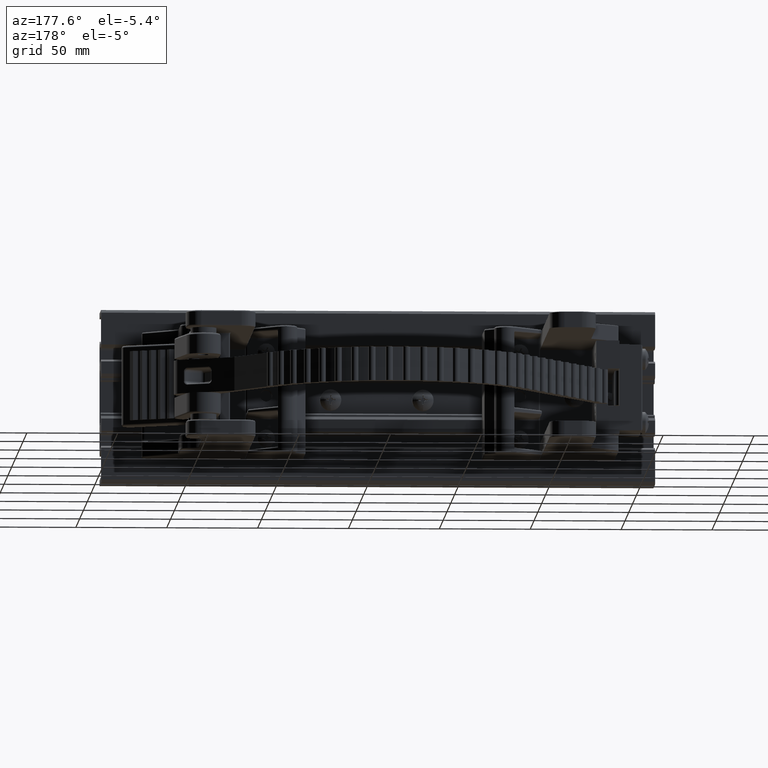
[diagram: clean part render]
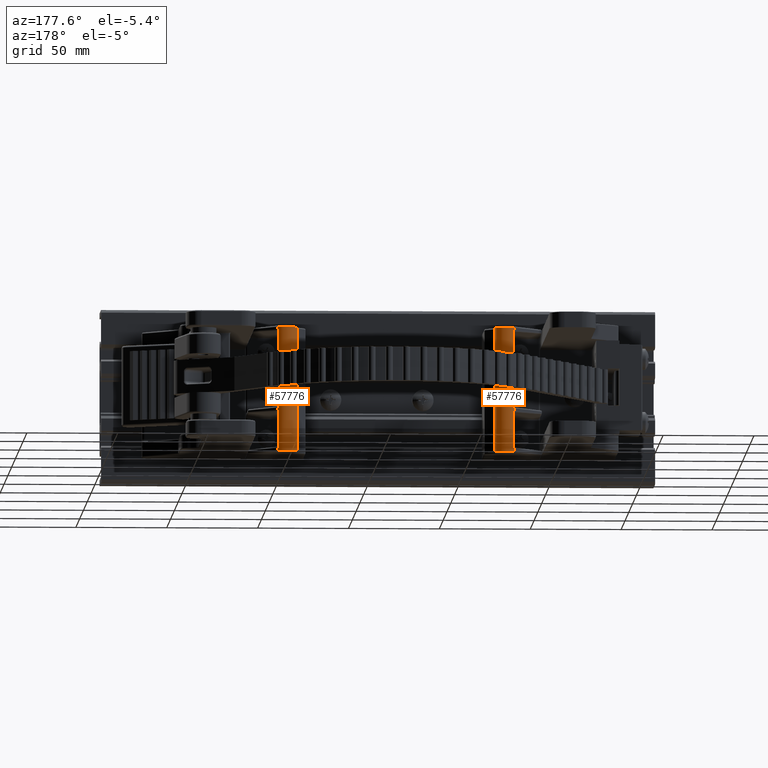
[diagram: same view with one multi-face feature highlighted, each face labeled with its STEP entity id]
A machine part, auxiliary view. The highlighted faces form ONE feature: a constant-radius fillet chain: 2 tangent blend faces with common blend radius 6.35 mm. The faces share edges in the B-rep.
Their STEP definitions:
[1] entity #57776 (Cylinder):
#9 = CARTESIAN_POINT ( 'NONE',  ( -0.6354604721004802900, 1.884875156828551300, -1.281781544797884000 ) ) ;
#40 = CARTESIAN_POINT ( 'NONE',  ( -0.6323165494894764600, 1.882025532608830700, -0.4641092069333788200 ) ) ;
#41 = CARTESIAN_POINT ( 'NONE',  ( -0.6351260480246021500, 1.884577168093879200, -1.282697241157105800 ) ) ;
#42 = CARTESIAN_POINT ( 'NONE',  ( -0.6347380017914061600, 1.884230265785832500, -1.283578500002208400 ) ) ;
#43 = CARTESIAN_POINT ( 'NONE',  ( -0.6336731929469995300, 1.883268507821020700, -1.285009409159271600 ) ) ;
#44 = CARTESIAN_POINT ( 'NONE',  ( -0.6330224722823582000, 1.882676372268308000, -1.285541204488436700 ) ) ;
#45 = CARTESIAN_POINT ( 'NONE',  ( -0.6323165494899665200, 1.882025532609283400, -1.285890793066377900 ) ) ;
#48 = CARTESIAN_POINT ( 'NONE',  ( -0.6250000000000000000, 1.875000000000000000, 1.375000000000000000 ) ) ;
#49 = DIRECTION ( 'NONE',  ( 0.0000000000000000000, 0.0000000000000000000, -1.000000000000000000 ) ) ;
#50 = CARTESIAN_POINT ( 'NONE',  ( -0.6354604721004802900, 1.884875156828551300, 1.375000000000000000 ) ) ;
#51 = DIRECTION ( 'NONE',  ( 0.0000000000000000000, 0.0000000000000000000, -1.000000000000000000 ) ) ;
#52 = CARTESIAN_POINT ( 'NONE',  ( -0.6323165494899665200, 1.882025532609283400, -1.285890793066377900 ) ) ;
#53 = CARTESIAN_POINT ( 'NONE',  ( -0.6330221335479066000, 1.882676059965233900, -0.4644586277631363400 ) ) ;
#54 = CARTESIAN_POINT ( 'NONE',  ( -0.6336742537434318900, 1.883269467232435000, -0.4649919156816039200 ) ) ;
#55 = CARTESIAN_POINT ( 'NONE',  ( -0.6347374321914602800, 1.884229750032991200, -0.4664208352776671500 ) ) ;
#56 = CARTESIAN_POINT ( 'NONE',  ( -0.6351300146487772700, 1.884580702556271500, -0.4673136199727308500 ) ) ;
#57 = CARTESIAN_POINT ( 'NONE',  ( -0.6354604721004802900, 1.884875156828551300, -0.4682184552020795500 ) ) ;
#58 = CARTESIAN_POINT ( 'NONE',  ( -0.6250000000000000000, 1.875000000000000000, -1.341045297141204800 ) ) ;
#61 = CARTESIAN_POINT ( 'NONE',  ( -0.6299741717799977000, 1.879865930558817200, -1.287050790310103200 ) ) ;
#62 = CARTESIAN_POINT ( 'NONE',  ( -0.6276739998562564900, 1.877662403364019200, -1.288215828016792800 ) ) ;
#63 = CARTESIAN_POINT ( 'NONE',  ( -0.6254171786128879300, 1.875416196420472500, -1.289380954705281500 ) ) ;
#64 = CARTESIAN_POINT ( 'NONE',  ( -0.6252779554772053300, 1.875277628080161300, -1.289452831284569900 ) ) ;
#65 = CARTESIAN_POINT ( 'NONE',  ( -0.6251388959239674300, 1.875138895923967700, -1.289524709276873300 ) ) ;
#66 = CARTESIAN_POINT ( 'NONE',  ( -0.6250000000000000000, 1.875000000000000000, -1.289596586628706700 ) ) ;
#73 = CARTESIAN_POINT ( 'NONE',  ( -0.8017766952966418600, 1.948223304703362400, -1.343745239748628000 ) ) ;
#74 = CARTESIAN_POINT ( 'NONE',  ( -0.6725106994472820300, 1.922510699447274700, -1.341770936691886900 ) ) ;
#75 = CARTESIAN_POINT ( 'NONE',  ( -0.7345864197804686800, 1.948223304703360400, -1.342719030454658300 ) ) ;
#76 = CARTESIAN_POINT ( 'NONE',  ( -0.8017766952966418600, 1.948223304703362400, -1.343745239748628000 ) ) ;
#84 = CARTESIAN_POINT ( 'NONE',  ( -0.9482233047033680200, 1.948223304703360400, -1.341508534057380200 ) ) ;
#85 = CARTESIAN_POINT ( 'NONE',  ( -1.051776695296641900, 1.844669914110086400, -1.339926944295580100 ) ) ;
#86 = CARTESIAN_POINT ( 'NONE',  ( -1.051776695296641900, 1.698223304703360400, -1.339926944295580100 ) ) ;
#2480 =( BOUNDED_CURVE ( )  B_SPLINE_CURVE ( 3, ( #58, #74, #75, #76 ),
 .UNSPECIFIED., .F., .T. ) 
 B_SPLINE_CURVE_WITH_KNOTS ( ( 4, 4 ),
 ( 3.926990816987235600, 4.712388980384689700 ),
 .UNSPECIFIED. ) 
 CURVE ( )  GEOMETRIC_REPRESENTATION_ITEM ( )  RATIONAL_B_SPLINE_CURVE ( ( 1.000000000000000000, 0.9492530216741903400, 0.9492530216741903400, 1.000000000000000000 ) ) 
 REPRESENTATION_ITEM ( '' )  );
#2482 =( BOUNDED_CURVE ( )  B_SPLINE_CURVE ( 3, ( #73, #84, #85, #86 ),
 .UNSPECIFIED., .F., .T. ) 
 B_SPLINE_CURVE_WITH_KNOTS ( ( 4, 4 ),
 ( 1.570796326794896600, 3.141592653589793100 ),
 .UNSPECIFIED. ) 
 CURVE ( )  GEOMETRIC_REPRESENTATION_ITEM ( )  RATIONAL_B_SPLINE_CURVE ( ( 1.000000000000000000, 0.8047378541243649400, 0.8047378541243649400, 1.000000000000000000 ) ) 
 REPRESENTATION_ITEM ( '' )  );
#2556 =( BOUNDED_CURVE ( )  B_SPLINE_CURVE ( 3, ( #4052, #4061, #4062, #4063 ),
 .UNSPECIFIED., .F., .T. ) 
 B_SPLINE_CURVE_WITH_KNOTS ( ( 4, 4 ),
 ( 0.0000000000000000000, 1.570796326794896600 ),
 .UNSPECIFIED. ) 
 CURVE ( )  GEOMETRIC_REPRESENTATION_ITEM ( )  RATIONAL_B_SPLINE_CURVE ( ( 1.000000000000000000, 0.8047378541243649400, 0.8047378541243649400, 1.000000000000000000 ) ) 
 REPRESENTATION_ITEM ( '' )  );
#4052 = CARTESIAN_POINT ( 'NONE',  ( -1.051776695296641900, 1.698223304703360400, 1.339926944295580300 ) ) ;
#4061 = CARTESIAN_POINT ( 'NONE',  ( -1.051776695296641900, 1.844669914110086400, 1.339926944295580100 ) ) ;
#4062 = CARTESIAN_POINT ( 'NONE',  ( -0.9482233047033680200, 1.948223304703360400, 1.341508534057380200 ) ) ;
#4063 = CARTESIAN_POINT ( 'NONE',  ( -0.8017766952966418600, 1.948223304703362400, 1.343745239748628000 ) ) ;
#9395 = VERTEX_POINT ( 'NONE', #43007 ) ;
#9396 = VERTEX_POINT ( 'NONE', #43022 ) ;
#9408 = VERTEX_POINT ( 'NONE', #43030 ) ;
#9420 = VERTEX_POINT ( 'NONE', #43045 ) ;
#9430 = VERTEX_POINT ( 'NONE', #43055 ) ;
#9444 = VERTEX_POINT ( 'NONE', #43067 ) ;
#9469 = VERTEX_POINT ( 'NONE', #43089 ) ;
#9482 = VERTEX_POINT ( 'NONE', #43100 ) ;
#9484 = VERTEX_POINT ( 'NONE', #43102 ) ;
#9485 = VERTEX_POINT ( 'NONE', #43104 ) ;
#9497 = VERTEX_POINT ( 'NONE', #43114 ) ;
#9504 = VERTEX_POINT ( 'NONE', #43119 ) ;
#9507 = VERTEX_POINT ( 'NONE', #43123 ) ;
#9551 = VERTEX_POINT ( 'NONE', #43165 ) ;
#9647 = VERTEX_POINT ( 'NONE', #43257 ) ;
#9651 = VERTEX_POINT ( 'NONE', #43262 ) ;
#9715 = VERTEX_POINT ( 'NONE', #43322 ) ;
#9730 = VERTEX_POINT ( 'NONE', #43337 ) ;
#9732 = VERTEX_POINT ( 'NONE', #43339 ) ;
#9738 = VERTEX_POINT ( 'NONE', #43344 ) ;
#9767 = VERTEX_POINT ( 'NONE', #43372 ) ;
#9952 = VERTEX_POINT ( 'NONE', #43544 ) ;
#10027 = VERTEX_POINT ( 'NONE', #43632 ) ;
#10029 = VERTEX_POINT ( 'NONE', #43633 ) ;
#10129 =( BOUNDED_CURVE ( )  B_SPLINE_CURVE ( 3, ( #47825, #47844, #47846, #47848 ),
 .UNSPECIFIED., .F., .T. ) 
 B_SPLINE_CURVE_WITH_KNOTS ( ( 4, 4 ),
 ( 4.712388980384689700, 5.497787143782143300 ),
 .UNSPECIFIED. ) 
 CURVE ( )  GEOMETRIC_REPRESENTATION_ITEM ( )  RATIONAL_B_SPLINE_CURVE ( ( 1.000000000000000000, 0.9492530216741903400, 0.9492530216741903400, 1.000000000000000000 ) ) 
 REPRESENTATION_ITEM ( '' )  );
#12663 = EDGE_LOOP ( 'NONE', ( #73429, #73430, #73431, #73432, #73433, #73434, #73435, #73436, #73437, #73438, #73439, #73442, #73443, #73444, #73445, #73446, #73453, #73448, #73449, #73450, #73451, #73452, #73462, #73461 ) ) ;
#15870 = B_SPLINE_CURVE_WITH_KNOTS ( 'NONE', 3,
 ( #9, #41, #42, #43, #44, #45 ),
 .UNSPECIFIED., .F., .F.,
 ( 4, 2, 4 ),
 ( -7.375673841362419800E-006, 7.030111857142956100E-005, 0.0001479779109842215300 ),
 .UNSPECIFIED. ) ;
#15872 = B_SPLINE_CURVE_WITH_KNOTS ( 'NONE', 3,
 ( #40, #53, #54, #55, #56, #57 ),
 .UNSPECIFIED., .F., .F.,
 ( 4, 2, 4 ),
 ( 8.498374721940738900E-018, 7.675546328529542800E-005, 0.0001535109265705823700 ),
 .UNSPECIFIED. ) ;
#15875 = B_SPLINE_CURVE_WITH_KNOTS ( 'NONE', 3,
 ( #52, #61, #62, #63, #64, #65, #66 ),
 .UNSPECIFIED., .F., .F.,
 ( 4, 3, 4 ),
 ( 0.0001146475992146287600, 0.0003730035169660013700, 0.0003889419832045119600 ),
 .UNSPECIFIED. ) ;
#16319 = EDGE_CURVE ( 'NONE', #9647, #9952, #32488, .T. ) ;
#16338 = EDGE_CURVE ( 'NONE', #9651, #9444, #32565, .T. ) ;
#16339 = EDGE_CURVE ( 'NONE', #9507, #9504, #53789, .T. ) ;
#16340 = EDGE_CURVE ( 'NONE', #9504, #9651, #53845, .T. ) ;
#16341 = EDGE_CURVE ( 'NONE', #9420, #9715, #53512, .T. ) ;
#16342 = EDGE_CURVE ( 'NONE', #9395, #9482, #32550, .T. ) ;
#16343 = EDGE_CURVE ( 'NONE', #9482, #9730, #53766, .T. ) ;
#16344 = EDGE_CURVE ( 'NONE', #9484, #9485, #53850, .T. ) ;
#16345 = EDGE_CURVE ( 'NONE', #10029, #9395, #53564, .T. ) ;
#16346 = EDGE_CURVE ( 'NONE', #9730, #9738, #53627, .T. ) ;
#16347 = EDGE_CURVE ( 'NONE', #9444, #10029, #53595, .T. ) ;
#16348 = EDGE_CURVE ( 'NONE', #9738, #9484, #32572, .T. ) ;
#16349 = EDGE_CURVE ( 'NONE', #9767, #9497, #10129, .T. ) ;
#16350 = EDGE_CURVE ( 'NONE', #9497, #9420, #32558, .T. ) ;
#16351 = EDGE_CURVE ( 'NONE', #9715, #9732, #53764, .T. ) ;
#16352 = EDGE_CURVE ( 'NONE', #9732, #9507, #32579, .T. ) ;
#31198 = EDGE_CURVE ( 'NONE', #9551, #9408, #15870, .T. ) ;
#31200 = EDGE_CURVE ( 'NONE', #9396, #10027, #76554, .T. ) ;
#31201 = EDGE_CURVE ( 'NONE', #9469, #9551, #76556, .T. ) ;
#31202 = EDGE_CURVE ( 'NONE', #9485, #9469, #15872, .T. ) ;
#31204 = EDGE_CURVE ( 'NONE', #9408, #9396, #15875, .T. ) ;
#31208 = EDGE_CURVE ( 'NONE', #10027, #9430, #2480, .T. ) ;
#31212 = EDGE_CURVE ( 'NONE', #9430, #9952, #2482, .T. ) ;
#32488 = LINE ( 'NONE', #43706, #32497 ) ;
#32497 = VECTOR ( 'NONE', #43712, 39.37007874015748100 ) ;
#32550 = LINE ( 'NONE', #47769, #32560 ) ;
#32558 = LINE ( 'NONE', #47852, #32581 ) ;
#32560 = VECTOR ( 'NONE', #47771, 39.37007874015748100 ) ;
#32565 = LINE ( 'NONE', #43845, #32567 ) ;
#32567 = VECTOR ( 'NONE', #43848, 39.37007874015748100 ) ;
#32569 = VECTOR ( 'NONE', #47872, 39.37007874015748100 ) ;
#32572 = LINE ( 'NONE', #47838, #32575 ) ;
#32575 = VECTOR ( 'NONE', #47839, 39.37007874015748100 ) ;
#32579 = LINE ( 'NONE', #47870, #32569 ) ;
#32581 = VECTOR ( 'NONE', #47854, 39.37007874015748100 ) ;
#40580 = EDGE_CURVE ( 'NONE', #9647, #9767, #2556, .T. ) ;
#43007 = CARTESIAN_POINT ( 'NONE',  ( -0.6354604721004802900, 1.884875156828551300, 0.4067815447979205600 ) ) ;
#43022 = CARTESIAN_POINT ( 'NONE',  ( -0.6250000000000000000, 1.875000000000000000, -1.289596586628706700 ) ) ;
#43030 = CARTESIAN_POINT ( 'NONE',  ( -0.6323165494899665200, 1.882025532609283400, -1.285890793066377900 ) ) ;
#43045 = CARTESIAN_POINT ( 'NONE',  ( -0.6250000000000000000, 1.875000000000000000, 1.289596586628706700 ) ) ;
#43055 = CARTESIAN_POINT ( 'NONE',  ( -0.8017766952966418600, 1.948223304703362400, -1.343745239748628000 ) ) ;
#43067 = CARTESIAN_POINT ( 'NONE',  ( -0.6250000000000000000, 1.875000000000000000, 0.4145965866287054700 ) ) ;
#43089 = CARTESIAN_POINT ( 'NONE',  ( -0.6354604721004802900, 1.884875156828551300, -0.4682184552020795500 ) ) ;
#43100 = CARTESIAN_POINT ( 'NONE',  ( -0.6354604721004802900, 1.884875156828551300, -0.4067815447978835300 ) ) ;
#43102 = CARTESIAN_POINT ( 'NONE',  ( -0.6250000000000000000, 1.875000000000000000, -0.4604034133712937000 ) ) ;
#43104 = CARTESIAN_POINT ( 'NONE',  ( -0.6323165494894764600, 1.882025532608830700, -0.4641092069333788200 ) ) ;
#43114 = CARTESIAN_POINT ( 'NONE',  ( -0.6250000000000000000, 1.875000000000000000, 1.341045297141204800 ) ) ;
#43119 = CARTESIAN_POINT ( 'NONE',  ( -0.6323165494894804600, 1.882025532608834400, 0.4641092069333803700 ) ) ;
#43123 = CARTESIAN_POINT ( 'NONE',  ( -0.6354604721004802900, 1.884875156828551300, 0.4682184552021165800 ) ) ;
#43165 = CARTESIAN_POINT ( 'NONE',  ( -0.6354604721004802900, 1.884875156828551300, -1.281781544797884000 ) ) ;
#43257 = CARTESIAN_POINT ( 'NONE',  ( -1.051776695296641900, 1.698223304703360400, 1.339926944295580300 ) ) ;
#43262 = CARTESIAN_POINT ( 'NONE',  ( -0.6250000000000000000, 1.875000000000000000, 0.4604034133712937000 ) ) ;
#43322 = CARTESIAN_POINT ( 'NONE',  ( -0.6323165494894764600, 1.882025532608830700, 1.285890793066622100 ) ) ;
#43337 = CARTESIAN_POINT ( 'NONE',  ( -0.6323165494894804600, 1.882025532608834400, -0.4108907930666189100 ) ) ;
#43339 = CARTESIAN_POINT ( 'NONE',  ( -0.6354604721004802900, 1.884875156828551300, 1.281781544797921300 ) ) ;
#43344 = CARTESIAN_POINT ( 'NONE',  ( -0.6250000000000000000, 1.875000000000000000, -0.4145965866287054700 ) ) ;
#43372 = CARTESIAN_POINT ( 'NONE',  ( -0.8017766952966418600, 1.948223304703362400, 1.343745239748628000 ) ) ;
#43544 = CARTESIAN_POINT ( 'NONE',  ( -1.051776695296641900, 1.698223304703360400, -1.339926944295580100 ) ) ;
#43632 = CARTESIAN_POINT ( 'NONE',  ( -0.6250000000000000000, 1.875000000000000000, -1.341045297141204800 ) ) ;
#43633 = CARTESIAN_POINT ( 'NONE',  ( -0.6323165494894764600, 1.882025532608830700, 0.4108907930666204600 ) ) ;
#43706 = CARTESIAN_POINT ( 'NONE',  ( -1.051776695296641900, 1.698223304703360400, 1.375000000000000000 ) ) ;
#43712 = DIRECTION ( 'NONE',  ( 0.0000000000000000000, 0.0000000000000000000, -1.000000000000000000 ) ) ;
#43815 = CARTESIAN_POINT ( 'NONE',  ( -0.6323165494894804600, 1.882025532608834400, 0.4641092069333803700 ) ) ;
#43843 = CARTESIAN_POINT ( 'NONE',  ( -0.6354604721004802900, 1.884875156828551300, 0.4682184552021165800 ) ) ;
#43845 = CARTESIAN_POINT ( 'NONE',  ( -0.6250000000000000000, 1.875000000000000000, 1.375000000000000000 ) ) ;
#43848 = DIRECTION ( 'NONE',  ( 0.0000000000000000000, 0.0000000000000000000, -1.000000000000000000 ) ) ;
#43852 = CARTESIAN_POINT ( 'NONE',  ( -0.6351260480245271000, 1.884577168093811900, 0.4673027588428090300 ) ) ;
#43855 = CARTESIAN_POINT ( 'NONE',  ( -0.6347380017913091300, 1.884230265785745700, 0.4664214999975879200 ) ) ;
#43857 = CARTESIAN_POINT ( 'NONE',  ( -0.6336731929467229700, 1.883268507820769400, 0.4649905908404347600 ) ) ;
#43860 = CARTESIAN_POINT ( 'NONE',  ( -0.6330224722818504900, 1.882676372267779100, 0.4644587955116749000 ) ) ;
#43862 = CARTESIAN_POINT ( 'NONE',  ( -0.6323165494894804600, 1.882025532608834400, 0.4641092069333803700 ) ) ;
#43866 = CARTESIAN_POINT ( 'NONE',  ( -0.6250000000000000000, 1.875000000000000000, 1.289596586628706700 ) ) ;
#43868 = CARTESIAN_POINT ( 'NONE',  ( -0.6299741717796789600, 1.879865930558511900, 0.4629492096897362400 ) ) ;
#43869 = CARTESIAN_POINT ( 'NONE',  ( -0.6276739998561035000, 1.877662403363868900, 0.4617841719831104500 ) ) ;
#43872 = CARTESIAN_POINT ( 'NONE',  ( -0.6254171786128858200, 1.875416196420472500, 0.4606190452947228600 ) ) ;
#43873 = CARTESIAN_POINT ( 'NONE',  ( -0.6252779554772028800, 1.875277628080160900, 0.4605471687154356600 ) ) ;
#43876 = CARTESIAN_POINT ( 'NONE',  ( -0.6251388959239671000, 1.875138895923967000, 0.4604752907231284800 ) ) ;
#43878 = CARTESIAN_POINT ( 'NONE',  ( -0.6250000000000000000, 1.875000000000000000, 0.4604034133712937000 ) ) ;
#43882 = CARTESIAN_POINT ( 'NONE',  ( -0.6354604721004802900, 1.884875156828551300, -0.4067815447978835300 ) ) ;
#43885 = CARTESIAN_POINT ( 'NONE',  ( -0.6251388959239674300, 1.875138895923967700, 1.289524709276873300 ) ) ;
#47760 = CARTESIAN_POINT ( 'NONE',  ( -0.6252779554772053300, 1.875277628080161300, 1.289452831284569900 ) ) ;
#47762 = CARTESIAN_POINT ( 'NONE',  ( -0.6254171786128879300, 1.875416196420472500, 1.289380954705281500 ) ) ;
#47764 = CARTESIAN_POINT ( 'NONE',  ( -0.6276739998560989500, 1.877662403363862500, 1.288215828016874300 ) ) ;
#47765 = CARTESIAN_POINT ( 'NONE',  ( -0.6299741717796763000, 1.879865930558509500, 1.287050790310265500 ) ) ;
#47766 = CARTESIAN_POINT ( 'NONE',  ( -0.6323165494894764600, 1.882025532608830700, 1.285890793066622100 ) ) ;
#47769 = CARTESIAN_POINT ( 'NONE',  ( -0.6354604721004802900, 1.884875156828551300, 1.375000000000000000 ) ) ;
#47771 = DIRECTION ( 'NONE',  ( 0.0000000000000000000, 0.0000000000000000000, -1.000000000000000000 ) ) ;
#47774 = CARTESIAN_POINT ( 'NONE',  ( -0.6250000000000000000, 1.875000000000000000, -0.4604034133712937000 ) ) ;
#47776 = CARTESIAN_POINT ( 'NONE',  ( -0.6351260480245268800, 1.884577168093812400, -0.4076972411571907500 ) ) ;
#47778 = CARTESIAN_POINT ( 'NONE',  ( -0.6347380017913084600, 1.884230265785745300, -0.4085785000024119200 ) ) ;
#47780 = CARTESIAN_POINT ( 'NONE',  ( -0.6336731929467227500, 1.883268507820769400, -0.4100094091595645200 ) ) ;
#47782 = CARTESIAN_POINT ( 'NONE',  ( -0.6330224722818506000, 1.882676372267779100, -0.4105412044883251500 ) ) ;
#47784 = CARTESIAN_POINT ( 'NONE',  ( -0.6323165494894804600, 1.882025532608834400, -0.4108907930666189100 ) ) ;
#47787 = CARTESIAN_POINT ( 'NONE',  ( -0.6323165494894764600, 1.882025532608830700, 0.4108907930666204600 ) ) ;
#47789 = CARTESIAN_POINT ( 'NONE',  ( -0.6251388959239671000, 1.875138895923967000, -0.4604752907231287100 ) ) ;
#47791 = CARTESIAN_POINT ( 'NONE',  ( -0.6252779554772026600, 1.875277628080160900, -0.4605471687154366100 ) ) ;
#47793 = CARTESIAN_POINT ( 'NONE',  ( -0.6254171786128858200, 1.875416196420472500, -0.4606190452947235800 ) ) ;
#47794 = CARTESIAN_POINT ( 'NONE',  ( -0.6276739998561030600, 1.877662403363868700, -0.4617841719831069500 ) ) ;
#47795 = CARTESIAN_POINT ( 'NONE',  ( -0.6299741717796765200, 1.879865930558509500, -0.4629492096897351900 ) ) ;
#47796 = CARTESIAN_POINT ( 'NONE',  ( -0.6323165494894764600, 1.882025532608830700, -0.4641092069333788200 ) ) ;
#47799 = CARTESIAN_POINT ( 'NONE',  ( -0.6323165494894804600, 1.882025532608834400, -0.4108907930666189100 ) ) ;
#47801 = CARTESIAN_POINT ( 'NONE',  ( -0.6330221335479066000, 1.882676059965233900, 0.4105413722368638200 ) ) ;
#47803 = CARTESIAN_POINT ( 'NONE',  ( -0.6336742537434307800, 1.883269467232434800, 0.4100080843183944700 ) ) ;
#47805 = CARTESIAN_POINT ( 'NONE',  ( -0.6347374321914588400, 1.884229750032989600, 0.4085791647223306300 ) ) ;
#47807 = CARTESIAN_POINT ( 'NONE',  ( -0.6351300146487767200, 1.884580702556270200, 0.4076863800272688100 ) ) ;
#47808 = CARTESIAN_POINT ( 'NONE',  ( -0.6354604721004802900, 1.884875156828551300, 0.4067815447979205600 ) ) ;
#47810 = CARTESIAN_POINT ( 'NONE',  ( -0.6250000000000000000, 1.875000000000000000, 0.4145965866287054700 ) ) ;
#47812 = CARTESIAN_POINT ( 'NONE',  ( -0.6299741717796790700, 1.879865930558511900, -0.4120507903102630900 ) ) ;
#47814 = CARTESIAN_POINT ( 'NONE',  ( -0.6276739998561025000, 1.877662403363868200, -0.4132158280168856100 ) ) ;
#47816 = CARTESIAN_POINT ( 'NONE',  ( -0.6254171786128858200, 1.875416196420472500, -0.4143809547052772500 ) ) ;
#47818 = CARTESIAN_POINT ( 'NONE',  ( -0.6252779554772030000, 1.875277628080160900, -0.4144528312845646200 ) ) ;
#47820 = CARTESIAN_POINT ( 'NONE',  ( -0.6251388959239671000, 1.875138895923967000, -0.4145247092768710700 ) ) ;
#47822 = CARTESIAN_POINT ( 'NONE',  ( -0.6250000000000000000, 1.875000000000000000, -0.4145965866287054700 ) ) ;
#47825 = CARTESIAN_POINT ( 'NONE',  ( -0.8017766952966418600, 1.948223304703362400, 1.343745239748628000 ) ) ;
#47827 = CARTESIAN_POINT ( 'NONE',  ( -0.6251388959239671000, 1.875138895923967000, 0.4145247092768708000 ) ) ;
#47829 = CARTESIAN_POINT ( 'NONE',  ( -0.6252779554772028800, 1.875277628080160900, 0.4144528312845636200 ) ) ;
#47831 = CARTESIAN_POINT ( 'NONE',  ( -0.6254171786128858200, 1.875416196420472500, 0.4143809547052764200 ) ) ;
#47833 = CARTESIAN_POINT ( 'NONE',  ( -0.6276739998561020600, 1.877662403363867600, 0.4132158280168892700 ) ) ;
#47835 = CARTESIAN_POINT ( 'NONE',  ( -0.6299741717796763000, 1.879865930558509000, 0.4120507903102644300 ) ) ;
#47837 = CARTESIAN_POINT ( 'NONE',  ( -0.6323165494894764600, 1.882025532608830700, 0.4108907930666204600 ) ) ;
#47838 = CARTESIAN_POINT ( 'NONE',  ( -0.6250000000000000000, 1.875000000000000000, 1.375000000000000000 ) ) ;
#47839 = DIRECTION ( 'NONE',  ( 0.0000000000000000000, 0.0000000000000000000, -1.000000000000000000 ) ) ;
#47842 = CARTESIAN_POINT ( 'NONE',  ( -0.6323165494894764600, 1.882025532608830700, 1.285890793066622100 ) ) ;
#47844 = CARTESIAN_POINT ( 'NONE',  ( -0.7345864197804686800, 1.948223304703360400, 1.342719030454658300 ) ) ;
#47846 = CARTESIAN_POINT ( 'NONE',  ( -0.6725106994472823700, 1.922510699447274900, 1.341770936691886900 ) ) ;
#47848 = CARTESIAN_POINT ( 'NONE',  ( -0.6250000000000000000, 1.875000000000000000, 1.341045297141204800 ) ) ;
#47852 = CARTESIAN_POINT ( 'NONE',  ( -0.6250000000000000000, 1.875000000000000000, 1.375000000000000000 ) ) ;
#47854 = DIRECTION ( 'NONE',  ( 0.0000000000000000000, 0.0000000000000000000, -1.000000000000000000 ) ) ;
#47859 = CARTESIAN_POINT ( 'NONE',  ( -0.6330221335479066000, 1.882676059965233900, 1.285541372236863400 ) ) ;
#47861 = CARTESIAN_POINT ( 'NONE',  ( -0.6336742537434317800, 1.883269467232435500, 1.285008084318396000 ) ) ;
#47863 = CARTESIAN_POINT ( 'NONE',  ( -0.6347374321914601700, 1.884229750032991400, 1.283579164722332500 ) ) ;
#47865 = CARTESIAN_POINT ( 'NONE',  ( -0.6351300146487945900, 1.884580702556287300, 1.282686380027279900 ) ) ;
#47867 = CARTESIAN_POINT ( 'NONE',  ( -0.6354604721004802900, 1.884875156828551300, 1.281781544797921300 ) ) ;
#47870 = CARTESIAN_POINT ( 'NONE',  ( -0.6354604721004802900, 1.884875156828551300, 1.375000000000000000 ) ) ;
#47872 = DIRECTION ( 'NONE',  ( 0.0000000000000000000, 0.0000000000000000000, -1.000000000000000000 ) ) ;
#53512 = B_SPLINE_CURVE_WITH_KNOTS ( 'NONE', 3,
 ( #43866, #43885, #47760, #47762, #47764, #47765, #47766 ),
 .UNSPECIFIED., .F., .F.,
 ( 4, 3, 4 ),
 ( -1.593846623851059700E-005, 0.0000000000000000000, 0.0002583559177333321300 ),
 .UNSPECIFIED. ) ;
#53564 = B_SPLINE_CURVE_WITH_KNOTS ( 'NONE', 3,
 ( #47787, #47801, #47803, #47805, #47807, #47808 ),
 .UNSPECIFIED., .F., .F.,
 ( 4, 2, 4 ),
 ( 1.522213672366955700E-017, 7.675546328530330200E-005, 0.0001535109265705914000 ),
 .UNSPECIFIED. ) ;
#53595 = B_SPLINE_CURVE_WITH_KNOTS ( 'NONE', 3,
 ( #47810, #47827, #47829, #47831, #47833, #47835, #47837 ),
 .UNSPECIFIED., .F., .F.,
 ( 4, 3, 4 ),
 ( -1.593846623850818800E-005, 0.0000000000000000000, 0.0002583559177333255700 ),
 .UNSPECIFIED. ) ;
#53627 = B_SPLINE_CURVE_WITH_KNOTS ( 'NONE', 3,
 ( #47799, #47812, #47814, #47816, #47818, #47820, #47822 ),
 .UNSPECIFIED., .F., .F.,
 ( 4, 3, 4 ),
 ( 0.0001146475992325294300, 0.0003730035169660179100, 0.0003889419832045189600 ),
 .UNSPECIFIED. ) ;
#53764 = B_SPLINE_CURVE_WITH_KNOTS ( 'NONE', 3,
 ( #47842, #47859, #47861, #47863, #47865, #47867 ),
 .UNSPECIFIED., .F., .F.,
 ( 4, 2, 4 ),
 ( 3.469446951953614200E-018, 7.675546328527541100E-005, 0.0001535109265705473500 ),
 .UNSPECIFIED. ) ;
#53766 = B_SPLINE_CURVE_WITH_KNOTS ( 'NONE', 3,
 ( #43882, #47776, #47778, #47780, #47782, #47784 ),
 .UNSPECIFIED., .F., .F.,
 ( 4, 2, 4 ),
 ( -7.375673841303733100E-006, 7.030111858062061400E-005, 0.0001479779110025449800 ),
 .UNSPECIFIED. ) ;
#53789 = B_SPLINE_CURVE_WITH_KNOTS ( 'NONE', 3,
 ( #43843, #43852, #43855, #43857, #43860, #43862 ),
 .UNSPECIFIED., .F., .F.,
 ( 4, 2, 4 ),
 ( -7.375673841305291700E-006, 7.030111858062892100E-005, 0.0001479779110025631400 ),
 .UNSPECIFIED. ) ;
#53845 = B_SPLINE_CURVE_WITH_KNOTS ( 'NONE', 3,
 ( #43815, #43868, #43869, #43872, #43873, #43876, #43878 ),
 .UNSPECIFIED., .F., .F.,
 ( 4, 3, 4 ),
 ( 0.0001146475992325344900, 0.0003730035169660108000, 0.0003889419832045196100 ),
 .UNSPECIFIED. ) ;
#53850 = B_SPLINE_CURVE_WITH_KNOTS ( 'NONE', 3,
 ( #47774, #47789, #47791, #47793, #47794, #47795, #47796 ),
 .UNSPECIFIED., .F., .F.,
 ( 4, 3, 4 ),
 ( -1.593846623851534000E-005, 0.0000000000000000000, 0.0002583559177333282900 ),
 .UNSPECIFIED. ) ;
#57776 = ADVANCED_FACE ( 'NONE', ( #67204 ), #67225, .T. ) ;
#64675 = DIRECTION ( 'NONE',  ( -1.000000000000000000, 0.0000000000000000000, 0.0000000000000000000 ) ) ;
#64679 = CARTESIAN_POINT ( 'NONE',  ( -0.8017766952966418600, 1.698223304703360400, 1.375000000000000000 ) ) ;
#64680 = DIRECTION ( 'NONE',  ( 0.0000000000000000000, 0.0000000000000000000, -1.000000000000000000 ) ) ;
#67204 = FACE_OUTER_BOUND ( 'NONE', #12663, .T. ) ;
#67225 = CYLINDRICAL_SURFACE ( 'NONE', #74166, 0.2499999999999999200 ) ;
#73429 = ORIENTED_EDGE ( 'NONE', *, *, #16319, .F. ) ;
#73430 = ORIENTED_EDGE ( 'NONE', *, *, #40580, .T. ) ;
#73431 = ORIENTED_EDGE ( 'NONE', *, *, #16349, .T. ) ;
#73432 = ORIENTED_EDGE ( 'NONE', *, *, #16350, .T. ) ;
#73433 = ORIENTED_EDGE ( 'NONE', *, *, #16341, .T. ) ;
#73434 = ORIENTED_EDGE ( 'NONE', *, *, #16351, .T. ) ;
#73435 = ORIENTED_EDGE ( 'NONE', *, *, #16352, .T. ) ;
#73436 = ORIENTED_EDGE ( 'NONE', *, *, #16339, .T. ) ;
#73437 = ORIENTED_EDGE ( 'NONE', *, *, #16340, .T. ) ;
#73438 = ORIENTED_EDGE ( 'NONE', *, *, #16338, .T. ) ;
#73439 = ORIENTED_EDGE ( 'NONE', *, *, #16347, .T. ) ;
#73442 = ORIENTED_EDGE ( 'NONE', *, *, #16345, .T. ) ;
#73443 = ORIENTED_EDGE ( 'NONE', *, *, #16342, .T. ) ;
#73444 = ORIENTED_EDGE ( 'NONE', *, *, #16343, .T. ) ;
#73445 = ORIENTED_EDGE ( 'NONE', *, *, #16346, .T. ) ;
#73446 = ORIENTED_EDGE ( 'NONE', *, *, #16348, .T. ) ;
#73448 = ORIENTED_EDGE ( 'NONE', *, *, #31202, .T. ) ;
#73449 = ORIENTED_EDGE ( 'NONE', *, *, #31201, .T. ) ;
#73450 = ORIENTED_EDGE ( 'NONE', *, *, #31198, .T. ) ;
#73451 = ORIENTED_EDGE ( 'NONE', *, *, #31204, .T. ) ;
#73452 = ORIENTED_EDGE ( 'NONE', *, *, #31200, .T. ) ;
#73453 = ORIENTED_EDGE ( 'NONE', *, *, #16344, .T. ) ;
#73461 = ORIENTED_EDGE ( 'NONE', *, *, #31212, .T. ) ;
#73462 = ORIENTED_EDGE ( 'NONE', *, *, #31208, .T. ) ;
#74166 = AXIS2_PLACEMENT_3D ( 'NONE', #64679, #64680, #64675 ) ;
#76554 = LINE ( 'NONE', #48, #76555 ) ;
#76555 = VECTOR ( 'NONE', #49, 39.37007874015748100 ) ;
#76556 = LINE ( 'NONE', #50, #76557 ) ;
#76557 = VECTOR ( 'NONE', #51, 39.37007874015748100 ) ;
[2] entity #57776 (Cylinder):
#9 = CARTESIAN_POINT ( 'NONE',  ( -0.6354604721004802900, 1.884875156828551300, -1.281781544797884000 ) ) ;
#40 = CARTESIAN_POINT ( 'NONE',  ( -0.6323165494894764600, 1.882025532608830700, -0.4641092069333788200 ) ) ;
#41 = CARTESIAN_POINT ( 'NONE',  ( -0.6351260480246021500, 1.884577168093879200, -1.282697241157105800 ) ) ;
#42 = CARTESIAN_POINT ( 'NONE',  ( -0.6347380017914061600, 1.884230265785832500, -1.283578500002208400 ) ) ;
#43 = CARTESIAN_POINT ( 'NONE',  ( -0.6336731929469995300, 1.883268507821020700, -1.285009409159271600 ) ) ;
#44 = CARTESIAN_POINT ( 'NONE',  ( -0.6330224722823582000, 1.882676372268308000, -1.285541204488436700 ) ) ;
#45 = CARTESIAN_POINT ( 'NONE',  ( -0.6323165494899665200, 1.882025532609283400, -1.285890793066377900 ) ) ;
#48 = CARTESIAN_POINT ( 'NONE',  ( -0.6250000000000000000, 1.875000000000000000, 1.375000000000000000 ) ) ;
#49 = DIRECTION ( 'NONE',  ( 0.0000000000000000000, 0.0000000000000000000, -1.000000000000000000 ) ) ;
#50 = CARTESIAN_POINT ( 'NONE',  ( -0.6354604721004802900, 1.884875156828551300, 1.375000000000000000 ) ) ;
#51 = DIRECTION ( 'NONE',  ( 0.0000000000000000000, 0.0000000000000000000, -1.000000000000000000 ) ) ;
#52 = CARTESIAN_POINT ( 'NONE',  ( -0.6323165494899665200, 1.882025532609283400, -1.285890793066377900 ) ) ;
#53 = CARTESIAN_POINT ( 'NONE',  ( -0.6330221335479066000, 1.882676059965233900, -0.4644586277631363400 ) ) ;
#54 = CARTESIAN_POINT ( 'NONE',  ( -0.6336742537434318900, 1.883269467232435000, -0.4649919156816039200 ) ) ;
#55 = CARTESIAN_POINT ( 'NONE',  ( -0.6347374321914602800, 1.884229750032991200, -0.4664208352776671500 ) ) ;
#56 = CARTESIAN_POINT ( 'NONE',  ( -0.6351300146487772700, 1.884580702556271500, -0.4673136199727308500 ) ) ;
#57 = CARTESIAN_POINT ( 'NONE',  ( -0.6354604721004802900, 1.884875156828551300, -0.4682184552020795500 ) ) ;
#58 = CARTESIAN_POINT ( 'NONE',  ( -0.6250000000000000000, 1.875000000000000000, -1.341045297141204800 ) ) ;
#61 = CARTESIAN_POINT ( 'NONE',  ( -0.6299741717799977000, 1.879865930558817200, -1.287050790310103200 ) ) ;
#62 = CARTESIAN_POINT ( 'NONE',  ( -0.6276739998562564900, 1.877662403364019200, -1.288215828016792800 ) ) ;
#63 = CARTESIAN_POINT ( 'NONE',  ( -0.6254171786128879300, 1.875416196420472500, -1.289380954705281500 ) ) ;
#64 = CARTESIAN_POINT ( 'NONE',  ( -0.6252779554772053300, 1.875277628080161300, -1.289452831284569900 ) ) ;
#65 = CARTESIAN_POINT ( 'NONE',  ( -0.6251388959239674300, 1.875138895923967700, -1.289524709276873300 ) ) ;
#66 = CARTESIAN_POINT ( 'NONE',  ( -0.6250000000000000000, 1.875000000000000000, -1.289596586628706700 ) ) ;
#73 = CARTESIAN_POINT ( 'NONE',  ( -0.8017766952966418600, 1.948223304703362400, -1.343745239748628000 ) ) ;
#74 = CARTESIAN_POINT ( 'NONE',  ( -0.6725106994472820300, 1.922510699447274700, -1.341770936691886900 ) ) ;
#75 = CARTESIAN_POINT ( 'NONE',  ( -0.7345864197804686800, 1.948223304703360400, -1.342719030454658300 ) ) ;
#76 = CARTESIAN_POINT ( 'NONE',  ( -0.8017766952966418600, 1.948223304703362400, -1.343745239748628000 ) ) ;
#84 = CARTESIAN_POINT ( 'NONE',  ( -0.9482233047033680200, 1.948223304703360400, -1.341508534057380200 ) ) ;
#85 = CARTESIAN_POINT ( 'NONE',  ( -1.051776695296641900, 1.844669914110086400, -1.339926944295580100 ) ) ;
#86 = CARTESIAN_POINT ( 'NONE',  ( -1.051776695296641900, 1.698223304703360400, -1.339926944295580100 ) ) ;
#2480 =( BOUNDED_CURVE ( )  B_SPLINE_CURVE ( 3, ( #58, #74, #75, #76 ),
 .UNSPECIFIED., .F., .T. ) 
 B_SPLINE_CURVE_WITH_KNOTS ( ( 4, 4 ),
 ( 3.926990816987235600, 4.712388980384689700 ),
 .UNSPECIFIED. ) 
 CURVE ( )  GEOMETRIC_REPRESENTATION_ITEM ( )  RATIONAL_B_SPLINE_CURVE ( ( 1.000000000000000000, 0.9492530216741903400, 0.9492530216741903400, 1.000000000000000000 ) ) 
 REPRESENTATION_ITEM ( '' )  );
#2482 =( BOUNDED_CURVE ( )  B_SPLINE_CURVE ( 3, ( #73, #84, #85, #86 ),
 .UNSPECIFIED., .F., .T. ) 
 B_SPLINE_CURVE_WITH_KNOTS ( ( 4, 4 ),
 ( 1.570796326794896600, 3.141592653589793100 ),
 .UNSPECIFIED. ) 
 CURVE ( )  GEOMETRIC_REPRESENTATION_ITEM ( )  RATIONAL_B_SPLINE_CURVE ( ( 1.000000000000000000, 0.8047378541243649400, 0.8047378541243649400, 1.000000000000000000 ) ) 
 REPRESENTATION_ITEM ( '' )  );
#2556 =( BOUNDED_CURVE ( )  B_SPLINE_CURVE ( 3, ( #4052, #4061, #4062, #4063 ),
 .UNSPECIFIED., .F., .T. ) 
 B_SPLINE_CURVE_WITH_KNOTS ( ( 4, 4 ),
 ( 0.0000000000000000000, 1.570796326794896600 ),
 .UNSPECIFIED. ) 
 CURVE ( )  GEOMETRIC_REPRESENTATION_ITEM ( )  RATIONAL_B_SPLINE_CURVE ( ( 1.000000000000000000, 0.8047378541243649400, 0.8047378541243649400, 1.000000000000000000 ) ) 
 REPRESENTATION_ITEM ( '' )  );
#4052 = CARTESIAN_POINT ( 'NONE',  ( -1.051776695296641900, 1.698223304703360400, 1.339926944295580300 ) ) ;
#4061 = CARTESIAN_POINT ( 'NONE',  ( -1.051776695296641900, 1.844669914110086400, 1.339926944295580100 ) ) ;
#4062 = CARTESIAN_POINT ( 'NONE',  ( -0.9482233047033680200, 1.948223304703360400, 1.341508534057380200 ) ) ;
#4063 = CARTESIAN_POINT ( 'NONE',  ( -0.8017766952966418600, 1.948223304703362400, 1.343745239748628000 ) ) ;
#9395 = VERTEX_POINT ( 'NONE', #43007 ) ;
#9396 = VERTEX_POINT ( 'NONE', #43022 ) ;
#9408 = VERTEX_POINT ( 'NONE', #43030 ) ;
#9420 = VERTEX_POINT ( 'NONE', #43045 ) ;
#9430 = VERTEX_POINT ( 'NONE', #43055 ) ;
#9444 = VERTEX_POINT ( 'NONE', #43067 ) ;
#9469 = VERTEX_POINT ( 'NONE', #43089 ) ;
#9482 = VERTEX_POINT ( 'NONE', #43100 ) ;
#9484 = VERTEX_POINT ( 'NONE', #43102 ) ;
#9485 = VERTEX_POINT ( 'NONE', #43104 ) ;
#9497 = VERTEX_POINT ( 'NONE', #43114 ) ;
#9504 = VERTEX_POINT ( 'NONE', #43119 ) ;
#9507 = VERTEX_POINT ( 'NONE', #43123 ) ;
#9551 = VERTEX_POINT ( 'NONE', #43165 ) ;
#9647 = VERTEX_POINT ( 'NONE', #43257 ) ;
#9651 = VERTEX_POINT ( 'NONE', #43262 ) ;
#9715 = VERTEX_POINT ( 'NONE', #43322 ) ;
#9730 = VERTEX_POINT ( 'NONE', #43337 ) ;
#9732 = VERTEX_POINT ( 'NONE', #43339 ) ;
#9738 = VERTEX_POINT ( 'NONE', #43344 ) ;
#9767 = VERTEX_POINT ( 'NONE', #43372 ) ;
#9952 = VERTEX_POINT ( 'NONE', #43544 ) ;
#10027 = VERTEX_POINT ( 'NONE', #43632 ) ;
#10029 = VERTEX_POINT ( 'NONE', #43633 ) ;
#10129 =( BOUNDED_CURVE ( )  B_SPLINE_CURVE ( 3, ( #47825, #47844, #47846, #47848 ),
 .UNSPECIFIED., .F., .T. ) 
 B_SPLINE_CURVE_WITH_KNOTS ( ( 4, 4 ),
 ( 4.712388980384689700, 5.497787143782143300 ),
 .UNSPECIFIED. ) 
 CURVE ( )  GEOMETRIC_REPRESENTATION_ITEM ( )  RATIONAL_B_SPLINE_CURVE ( ( 1.000000000000000000, 0.9492530216741903400, 0.9492530216741903400, 1.000000000000000000 ) ) 
 REPRESENTATION_ITEM ( '' )  );
#12663 = EDGE_LOOP ( 'NONE', ( #73429, #73430, #73431, #73432, #73433, #73434, #73435, #73436, #73437, #73438, #73439, #73442, #73443, #73444, #73445, #73446, #73453, #73448, #73449, #73450, #73451, #73452, #73462, #73461 ) ) ;
#15870 = B_SPLINE_CURVE_WITH_KNOTS ( 'NONE', 3,
 ( #9, #41, #42, #43, #44, #45 ),
 .UNSPECIFIED., .F., .F.,
 ( 4, 2, 4 ),
 ( -7.375673841362419800E-006, 7.030111857142956100E-005, 0.0001479779109842215300 ),
 .UNSPECIFIED. ) ;
#15872 = B_SPLINE_CURVE_WITH_KNOTS ( 'NONE', 3,
 ( #40, #53, #54, #55, #56, #57 ),
 .UNSPECIFIED., .F., .F.,
 ( 4, 2, 4 ),
 ( 8.498374721940738900E-018, 7.675546328529542800E-005, 0.0001535109265705823700 ),
 .UNSPECIFIED. ) ;
#15875 = B_SPLINE_CURVE_WITH_KNOTS ( 'NONE', 3,
 ( #52, #61, #62, #63, #64, #65, #66 ),
 .UNSPECIFIED., .F., .F.,
 ( 4, 3, 4 ),
 ( 0.0001146475992146287600, 0.0003730035169660013700, 0.0003889419832045119600 ),
 .UNSPECIFIED. ) ;
#16319 = EDGE_CURVE ( 'NONE', #9647, #9952, #32488, .T. ) ;
#16338 = EDGE_CURVE ( 'NONE', #9651, #9444, #32565, .T. ) ;
#16339 = EDGE_CURVE ( 'NONE', #9507, #9504, #53789, .T. ) ;
#16340 = EDGE_CURVE ( 'NONE', #9504, #9651, #53845, .T. ) ;
#16341 = EDGE_CURVE ( 'NONE', #9420, #9715, #53512, .T. ) ;
#16342 = EDGE_CURVE ( 'NONE', #9395, #9482, #32550, .T. ) ;
#16343 = EDGE_CURVE ( 'NONE', #9482, #9730, #53766, .T. ) ;
#16344 = EDGE_CURVE ( 'NONE', #9484, #9485, #53850, .T. ) ;
#16345 = EDGE_CURVE ( 'NONE', #10029, #9395, #53564, .T. ) ;
#16346 = EDGE_CURVE ( 'NONE', #9730, #9738, #53627, .T. ) ;
#16347 = EDGE_CURVE ( 'NONE', #9444, #10029, #53595, .T. ) ;
#16348 = EDGE_CURVE ( 'NONE', #9738, #9484, #32572, .T. ) ;
#16349 = EDGE_CURVE ( 'NONE', #9767, #9497, #10129, .T. ) ;
#16350 = EDGE_CURVE ( 'NONE', #9497, #9420, #32558, .T. ) ;
#16351 = EDGE_CURVE ( 'NONE', #9715, #9732, #53764, .T. ) ;
#16352 = EDGE_CURVE ( 'NONE', #9732, #9507, #32579, .T. ) ;
#31198 = EDGE_CURVE ( 'NONE', #9551, #9408, #15870, .T. ) ;
#31200 = EDGE_CURVE ( 'NONE', #9396, #10027, #76554, .T. ) ;
#31201 = EDGE_CURVE ( 'NONE', #9469, #9551, #76556, .T. ) ;
#31202 = EDGE_CURVE ( 'NONE', #9485, #9469, #15872, .T. ) ;
#31204 = EDGE_CURVE ( 'NONE', #9408, #9396, #15875, .T. ) ;
#31208 = EDGE_CURVE ( 'NONE', #10027, #9430, #2480, .T. ) ;
#31212 = EDGE_CURVE ( 'NONE', #9430, #9952, #2482, .T. ) ;
#32488 = LINE ( 'NONE', #43706, #32497 ) ;
#32497 = VECTOR ( 'NONE', #43712, 39.37007874015748100 ) ;
#32550 = LINE ( 'NONE', #47769, #32560 ) ;
#32558 = LINE ( 'NONE', #47852, #32581 ) ;
#32560 = VECTOR ( 'NONE', #47771, 39.37007874015748100 ) ;
#32565 = LINE ( 'NONE', #43845, #32567 ) ;
#32567 = VECTOR ( 'NONE', #43848, 39.37007874015748100 ) ;
#32569 = VECTOR ( 'NONE', #47872, 39.37007874015748100 ) ;
#32572 = LINE ( 'NONE', #47838, #32575 ) ;
#32575 = VECTOR ( 'NONE', #47839, 39.37007874015748100 ) ;
#32579 = LINE ( 'NONE', #47870, #32569 ) ;
#32581 = VECTOR ( 'NONE', #47854, 39.37007874015748100 ) ;
#40580 = EDGE_CURVE ( 'NONE', #9647, #9767, #2556, .T. ) ;
#43007 = CARTESIAN_POINT ( 'NONE',  ( -0.6354604721004802900, 1.884875156828551300, 0.4067815447979205600 ) ) ;
#43022 = CARTESIAN_POINT ( 'NONE',  ( -0.6250000000000000000, 1.875000000000000000, -1.289596586628706700 ) ) ;
#43030 = CARTESIAN_POINT ( 'NONE',  ( -0.6323165494899665200, 1.882025532609283400, -1.285890793066377900 ) ) ;
#43045 = CARTESIAN_POINT ( 'NONE',  ( -0.6250000000000000000, 1.875000000000000000, 1.289596586628706700 ) ) ;
#43055 = CARTESIAN_POINT ( 'NONE',  ( -0.8017766952966418600, 1.948223304703362400, -1.343745239748628000 ) ) ;
#43067 = CARTESIAN_POINT ( 'NONE',  ( -0.6250000000000000000, 1.875000000000000000, 0.4145965866287054700 ) ) ;
#43089 = CARTESIAN_POINT ( 'NONE',  ( -0.6354604721004802900, 1.884875156828551300, -0.4682184552020795500 ) ) ;
#43100 = CARTESIAN_POINT ( 'NONE',  ( -0.6354604721004802900, 1.884875156828551300, -0.4067815447978835300 ) ) ;
#43102 = CARTESIAN_POINT ( 'NONE',  ( -0.6250000000000000000, 1.875000000000000000, -0.4604034133712937000 ) ) ;
#43104 = CARTESIAN_POINT ( 'NONE',  ( -0.6323165494894764600, 1.882025532608830700, -0.4641092069333788200 ) ) ;
#43114 = CARTESIAN_POINT ( 'NONE',  ( -0.6250000000000000000, 1.875000000000000000, 1.341045297141204800 ) ) ;
#43119 = CARTESIAN_POINT ( 'NONE',  ( -0.6323165494894804600, 1.882025532608834400, 0.4641092069333803700 ) ) ;
#43123 = CARTESIAN_POINT ( 'NONE',  ( -0.6354604721004802900, 1.884875156828551300, 0.4682184552021165800 ) ) ;
#43165 = CARTESIAN_POINT ( 'NONE',  ( -0.6354604721004802900, 1.884875156828551300, -1.281781544797884000 ) ) ;
#43257 = CARTESIAN_POINT ( 'NONE',  ( -1.051776695296641900, 1.698223304703360400, 1.339926944295580300 ) ) ;
#43262 = CARTESIAN_POINT ( 'NONE',  ( -0.6250000000000000000, 1.875000000000000000, 0.4604034133712937000 ) ) ;
#43322 = CARTESIAN_POINT ( 'NONE',  ( -0.6323165494894764600, 1.882025532608830700, 1.285890793066622100 ) ) ;
#43337 = CARTESIAN_POINT ( 'NONE',  ( -0.6323165494894804600, 1.882025532608834400, -0.4108907930666189100 ) ) ;
#43339 = CARTESIAN_POINT ( 'NONE',  ( -0.6354604721004802900, 1.884875156828551300, 1.281781544797921300 ) ) ;
#43344 = CARTESIAN_POINT ( 'NONE',  ( -0.6250000000000000000, 1.875000000000000000, -0.4145965866287054700 ) ) ;
#43372 = CARTESIAN_POINT ( 'NONE',  ( -0.8017766952966418600, 1.948223304703362400, 1.343745239748628000 ) ) ;
#43544 = CARTESIAN_POINT ( 'NONE',  ( -1.051776695296641900, 1.698223304703360400, -1.339926944295580100 ) ) ;
#43632 = CARTESIAN_POINT ( 'NONE',  ( -0.6250000000000000000, 1.875000000000000000, -1.341045297141204800 ) ) ;
#43633 = CARTESIAN_POINT ( 'NONE',  ( -0.6323165494894764600, 1.882025532608830700, 0.4108907930666204600 ) ) ;
#43706 = CARTESIAN_POINT ( 'NONE',  ( -1.051776695296641900, 1.698223304703360400, 1.375000000000000000 ) ) ;
#43712 = DIRECTION ( 'NONE',  ( 0.0000000000000000000, 0.0000000000000000000, -1.000000000000000000 ) ) ;
#43815 = CARTESIAN_POINT ( 'NONE',  ( -0.6323165494894804600, 1.882025532608834400, 0.4641092069333803700 ) ) ;
#43843 = CARTESIAN_POINT ( 'NONE',  ( -0.6354604721004802900, 1.884875156828551300, 0.4682184552021165800 ) ) ;
#43845 = CARTESIAN_POINT ( 'NONE',  ( -0.6250000000000000000, 1.875000000000000000, 1.375000000000000000 ) ) ;
#43848 = DIRECTION ( 'NONE',  ( 0.0000000000000000000, 0.0000000000000000000, -1.000000000000000000 ) ) ;
#43852 = CARTESIAN_POINT ( 'NONE',  ( -0.6351260480245271000, 1.884577168093811900, 0.4673027588428090300 ) ) ;
#43855 = CARTESIAN_POINT ( 'NONE',  ( -0.6347380017913091300, 1.884230265785745700, 0.4664214999975879200 ) ) ;
#43857 = CARTESIAN_POINT ( 'NONE',  ( -0.6336731929467229700, 1.883268507820769400, 0.4649905908404347600 ) ) ;
#43860 = CARTESIAN_POINT ( 'NONE',  ( -0.6330224722818504900, 1.882676372267779100, 0.4644587955116749000 ) ) ;
#43862 = CARTESIAN_POINT ( 'NONE',  ( -0.6323165494894804600, 1.882025532608834400, 0.4641092069333803700 ) ) ;
#43866 = CARTESIAN_POINT ( 'NONE',  ( -0.6250000000000000000, 1.875000000000000000, 1.289596586628706700 ) ) ;
#43868 = CARTESIAN_POINT ( 'NONE',  ( -0.6299741717796789600, 1.879865930558511900, 0.4629492096897362400 ) ) ;
#43869 = CARTESIAN_POINT ( 'NONE',  ( -0.6276739998561035000, 1.877662403363868900, 0.4617841719831104500 ) ) ;
#43872 = CARTESIAN_POINT ( 'NONE',  ( -0.6254171786128858200, 1.875416196420472500, 0.4606190452947228600 ) ) ;
#43873 = CARTESIAN_POINT ( 'NONE',  ( -0.6252779554772028800, 1.875277628080160900, 0.4605471687154356600 ) ) ;
#43876 = CARTESIAN_POINT ( 'NONE',  ( -0.6251388959239671000, 1.875138895923967000, 0.4604752907231284800 ) ) ;
#43878 = CARTESIAN_POINT ( 'NONE',  ( -0.6250000000000000000, 1.875000000000000000, 0.4604034133712937000 ) ) ;
#43882 = CARTESIAN_POINT ( 'NONE',  ( -0.6354604721004802900, 1.884875156828551300, -0.4067815447978835300 ) ) ;
#43885 = CARTESIAN_POINT ( 'NONE',  ( -0.6251388959239674300, 1.875138895923967700, 1.289524709276873300 ) ) ;
#47760 = CARTESIAN_POINT ( 'NONE',  ( -0.6252779554772053300, 1.875277628080161300, 1.289452831284569900 ) ) ;
#47762 = CARTESIAN_POINT ( 'NONE',  ( -0.6254171786128879300, 1.875416196420472500, 1.289380954705281500 ) ) ;
#47764 = CARTESIAN_POINT ( 'NONE',  ( -0.6276739998560989500, 1.877662403363862500, 1.288215828016874300 ) ) ;
#47765 = CARTESIAN_POINT ( 'NONE',  ( -0.6299741717796763000, 1.879865930558509500, 1.287050790310265500 ) ) ;
#47766 = CARTESIAN_POINT ( 'NONE',  ( -0.6323165494894764600, 1.882025532608830700, 1.285890793066622100 ) ) ;
#47769 = CARTESIAN_POINT ( 'NONE',  ( -0.6354604721004802900, 1.884875156828551300, 1.375000000000000000 ) ) ;
#47771 = DIRECTION ( 'NONE',  ( 0.0000000000000000000, 0.0000000000000000000, -1.000000000000000000 ) ) ;
#47774 = CARTESIAN_POINT ( 'NONE',  ( -0.6250000000000000000, 1.875000000000000000, -0.4604034133712937000 ) ) ;
#47776 = CARTESIAN_POINT ( 'NONE',  ( -0.6351260480245268800, 1.884577168093812400, -0.4076972411571907500 ) ) ;
#47778 = CARTESIAN_POINT ( 'NONE',  ( -0.6347380017913084600, 1.884230265785745300, -0.4085785000024119200 ) ) ;
#47780 = CARTESIAN_POINT ( 'NONE',  ( -0.6336731929467227500, 1.883268507820769400, -0.4100094091595645200 ) ) ;
#47782 = CARTESIAN_POINT ( 'NONE',  ( -0.6330224722818506000, 1.882676372267779100, -0.4105412044883251500 ) ) ;
#47784 = CARTESIAN_POINT ( 'NONE',  ( -0.6323165494894804600, 1.882025532608834400, -0.4108907930666189100 ) ) ;
#47787 = CARTESIAN_POINT ( 'NONE',  ( -0.6323165494894764600, 1.882025532608830700, 0.4108907930666204600 ) ) ;
#47789 = CARTESIAN_POINT ( 'NONE',  ( -0.6251388959239671000, 1.875138895923967000, -0.4604752907231287100 ) ) ;
#47791 = CARTESIAN_POINT ( 'NONE',  ( -0.6252779554772026600, 1.875277628080160900, -0.4605471687154366100 ) ) ;
#47793 = CARTESIAN_POINT ( 'NONE',  ( -0.6254171786128858200, 1.875416196420472500, -0.4606190452947235800 ) ) ;
#47794 = CARTESIAN_POINT ( 'NONE',  ( -0.6276739998561030600, 1.877662403363868700, -0.4617841719831069500 ) ) ;
#47795 = CARTESIAN_POINT ( 'NONE',  ( -0.6299741717796765200, 1.879865930558509500, -0.4629492096897351900 ) ) ;
#47796 = CARTESIAN_POINT ( 'NONE',  ( -0.6323165494894764600, 1.882025532608830700, -0.4641092069333788200 ) ) ;
#47799 = CARTESIAN_POINT ( 'NONE',  ( -0.6323165494894804600, 1.882025532608834400, -0.4108907930666189100 ) ) ;
#47801 = CARTESIAN_POINT ( 'NONE',  ( -0.6330221335479066000, 1.882676059965233900, 0.4105413722368638200 ) ) ;
#47803 = CARTESIAN_POINT ( 'NONE',  ( -0.6336742537434307800, 1.883269467232434800, 0.4100080843183944700 ) ) ;
#47805 = CARTESIAN_POINT ( 'NONE',  ( -0.6347374321914588400, 1.884229750032989600, 0.4085791647223306300 ) ) ;
#47807 = CARTESIAN_POINT ( 'NONE',  ( -0.6351300146487767200, 1.884580702556270200, 0.4076863800272688100 ) ) ;
#47808 = CARTESIAN_POINT ( 'NONE',  ( -0.6354604721004802900, 1.884875156828551300, 0.4067815447979205600 ) ) ;
#47810 = CARTESIAN_POINT ( 'NONE',  ( -0.6250000000000000000, 1.875000000000000000, 0.4145965866287054700 ) ) ;
#47812 = CARTESIAN_POINT ( 'NONE',  ( -0.6299741717796790700, 1.879865930558511900, -0.4120507903102630900 ) ) ;
#47814 = CARTESIAN_POINT ( 'NONE',  ( -0.6276739998561025000, 1.877662403363868200, -0.4132158280168856100 ) ) ;
#47816 = CARTESIAN_POINT ( 'NONE',  ( -0.6254171786128858200, 1.875416196420472500, -0.4143809547052772500 ) ) ;
#47818 = CARTESIAN_POINT ( 'NONE',  ( -0.6252779554772030000, 1.875277628080160900, -0.4144528312845646200 ) ) ;
#47820 = CARTESIAN_POINT ( 'NONE',  ( -0.6251388959239671000, 1.875138895923967000, -0.4145247092768710700 ) ) ;
#47822 = CARTESIAN_POINT ( 'NONE',  ( -0.6250000000000000000, 1.875000000000000000, -0.4145965866287054700 ) ) ;
#47825 = CARTESIAN_POINT ( 'NONE',  ( -0.8017766952966418600, 1.948223304703362400, 1.343745239748628000 ) ) ;
#47827 = CARTESIAN_POINT ( 'NONE',  ( -0.6251388959239671000, 1.875138895923967000, 0.4145247092768708000 ) ) ;
#47829 = CARTESIAN_POINT ( 'NONE',  ( -0.6252779554772028800, 1.875277628080160900, 0.4144528312845636200 ) ) ;
#47831 = CARTESIAN_POINT ( 'NONE',  ( -0.6254171786128858200, 1.875416196420472500, 0.4143809547052764200 ) ) ;
#47833 = CARTESIAN_POINT ( 'NONE',  ( -0.6276739998561020600, 1.877662403363867600, 0.4132158280168892700 ) ) ;
#47835 = CARTESIAN_POINT ( 'NONE',  ( -0.6299741717796763000, 1.879865930558509000, 0.4120507903102644300 ) ) ;
#47837 = CARTESIAN_POINT ( 'NONE',  ( -0.6323165494894764600, 1.882025532608830700, 0.4108907930666204600 ) ) ;
#47838 = CARTESIAN_POINT ( 'NONE',  ( -0.6250000000000000000, 1.875000000000000000, 1.375000000000000000 ) ) ;
#47839 = DIRECTION ( 'NONE',  ( 0.0000000000000000000, 0.0000000000000000000, -1.000000000000000000 ) ) ;
#47842 = CARTESIAN_POINT ( 'NONE',  ( -0.6323165494894764600, 1.882025532608830700, 1.285890793066622100 ) ) ;
#47844 = CARTESIAN_POINT ( 'NONE',  ( -0.7345864197804686800, 1.948223304703360400, 1.342719030454658300 ) ) ;
#47846 = CARTESIAN_POINT ( 'NONE',  ( -0.6725106994472823700, 1.922510699447274900, 1.341770936691886900 ) ) ;
#47848 = CARTESIAN_POINT ( 'NONE',  ( -0.6250000000000000000, 1.875000000000000000, 1.341045297141204800 ) ) ;
#47852 = CARTESIAN_POINT ( 'NONE',  ( -0.6250000000000000000, 1.875000000000000000, 1.375000000000000000 ) ) ;
#47854 = DIRECTION ( 'NONE',  ( 0.0000000000000000000, 0.0000000000000000000, -1.000000000000000000 ) ) ;
#47859 = CARTESIAN_POINT ( 'NONE',  ( -0.6330221335479066000, 1.882676059965233900, 1.285541372236863400 ) ) ;
#47861 = CARTESIAN_POINT ( 'NONE',  ( -0.6336742537434317800, 1.883269467232435500, 1.285008084318396000 ) ) ;
#47863 = CARTESIAN_POINT ( 'NONE',  ( -0.6347374321914601700, 1.884229750032991400, 1.283579164722332500 ) ) ;
#47865 = CARTESIAN_POINT ( 'NONE',  ( -0.6351300146487945900, 1.884580702556287300, 1.282686380027279900 ) ) ;
#47867 = CARTESIAN_POINT ( 'NONE',  ( -0.6354604721004802900, 1.884875156828551300, 1.281781544797921300 ) ) ;
#47870 = CARTESIAN_POINT ( 'NONE',  ( -0.6354604721004802900, 1.884875156828551300, 1.375000000000000000 ) ) ;
#47872 = DIRECTION ( 'NONE',  ( 0.0000000000000000000, 0.0000000000000000000, -1.000000000000000000 ) ) ;
#53512 = B_SPLINE_CURVE_WITH_KNOTS ( 'NONE', 3,
 ( #43866, #43885, #47760, #47762, #47764, #47765, #47766 ),
 .UNSPECIFIED., .F., .F.,
 ( 4, 3, 4 ),
 ( -1.593846623851059700E-005, 0.0000000000000000000, 0.0002583559177333321300 ),
 .UNSPECIFIED. ) ;
#53564 = B_SPLINE_CURVE_WITH_KNOTS ( 'NONE', 3,
 ( #47787, #47801, #47803, #47805, #47807, #47808 ),
 .UNSPECIFIED., .F., .F.,
 ( 4, 2, 4 ),
 ( 1.522213672366955700E-017, 7.675546328530330200E-005, 0.0001535109265705914000 ),
 .UNSPECIFIED. ) ;
#53595 = B_SPLINE_CURVE_WITH_KNOTS ( 'NONE', 3,
 ( #47810, #47827, #47829, #47831, #47833, #47835, #47837 ),
 .UNSPECIFIED., .F., .F.,
 ( 4, 3, 4 ),
 ( -1.593846623850818800E-005, 0.0000000000000000000, 0.0002583559177333255700 ),
 .UNSPECIFIED. ) ;
#53627 = B_SPLINE_CURVE_WITH_KNOTS ( 'NONE', 3,
 ( #47799, #47812, #47814, #47816, #47818, #47820, #47822 ),
 .UNSPECIFIED., .F., .F.,
 ( 4, 3, 4 ),
 ( 0.0001146475992325294300, 0.0003730035169660179100, 0.0003889419832045189600 ),
 .UNSPECIFIED. ) ;
#53764 = B_SPLINE_CURVE_WITH_KNOTS ( 'NONE', 3,
 ( #47842, #47859, #47861, #47863, #47865, #47867 ),
 .UNSPECIFIED., .F., .F.,
 ( 4, 2, 4 ),
 ( 3.469446951953614200E-018, 7.675546328527541100E-005, 0.0001535109265705473500 ),
 .UNSPECIFIED. ) ;
#53766 = B_SPLINE_CURVE_WITH_KNOTS ( 'NONE', 3,
 ( #43882, #47776, #47778, #47780, #47782, #47784 ),
 .UNSPECIFIED., .F., .F.,
 ( 4, 2, 4 ),
 ( -7.375673841303733100E-006, 7.030111858062061400E-005, 0.0001479779110025449800 ),
 .UNSPECIFIED. ) ;
#53789 = B_SPLINE_CURVE_WITH_KNOTS ( 'NONE', 3,
 ( #43843, #43852, #43855, #43857, #43860, #43862 ),
 .UNSPECIFIED., .F., .F.,
 ( 4, 2, 4 ),
 ( -7.375673841305291700E-006, 7.030111858062892100E-005, 0.0001479779110025631400 ),
 .UNSPECIFIED. ) ;
#53845 = B_SPLINE_CURVE_WITH_KNOTS ( 'NONE', 3,
 ( #43815, #43868, #43869, #43872, #43873, #43876, #43878 ),
 .UNSPECIFIED., .F., .F.,
 ( 4, 3, 4 ),
 ( 0.0001146475992325344900, 0.0003730035169660108000, 0.0003889419832045196100 ),
 .UNSPECIFIED. ) ;
#53850 = B_SPLINE_CURVE_WITH_KNOTS ( 'NONE', 3,
 ( #47774, #47789, #47791, #47793, #47794, #47795, #47796 ),
 .UNSPECIFIED., .F., .F.,
 ( 4, 3, 4 ),
 ( -1.593846623851534000E-005, 0.0000000000000000000, 0.0002583559177333282900 ),
 .UNSPECIFIED. ) ;
#57776 = ADVANCED_FACE ( 'NONE', ( #67204 ), #67225, .T. ) ;
#64675 = DIRECTION ( 'NONE',  ( -1.000000000000000000, 0.0000000000000000000, 0.0000000000000000000 ) ) ;
#64679 = CARTESIAN_POINT ( 'NONE',  ( -0.8017766952966418600, 1.698223304703360400, 1.375000000000000000 ) ) ;
#64680 = DIRECTION ( 'NONE',  ( 0.0000000000000000000, 0.0000000000000000000, -1.000000000000000000 ) ) ;
#67204 = FACE_OUTER_BOUND ( 'NONE', #12663, .T. ) ;
#67225 = CYLINDRICAL_SURFACE ( 'NONE', #74166, 0.2499999999999999200 ) ;
#73429 = ORIENTED_EDGE ( 'NONE', *, *, #16319, .F. ) ;
#73430 = ORIENTED_EDGE ( 'NONE', *, *, #40580, .T. ) ;
#73431 = ORIENTED_EDGE ( 'NONE', *, *, #16349, .T. ) ;
#73432 = ORIENTED_EDGE ( 'NONE', *, *, #16350, .T. ) ;
#73433 = ORIENTED_EDGE ( 'NONE', *, *, #16341, .T. ) ;
#73434 = ORIENTED_EDGE ( 'NONE', *, *, #16351, .T. ) ;
#73435 = ORIENTED_EDGE ( 'NONE', *, *, #16352, .T. ) ;
#73436 = ORIENTED_EDGE ( 'NONE', *, *, #16339, .T. ) ;
#73437 = ORIENTED_EDGE ( 'NONE', *, *, #16340, .T. ) ;
#73438 = ORIENTED_EDGE ( 'NONE', *, *, #16338, .T. ) ;
#73439 = ORIENTED_EDGE ( 'NONE', *, *, #16347, .T. ) ;
#73442 = ORIENTED_EDGE ( 'NONE', *, *, #16345, .T. ) ;
#73443 = ORIENTED_EDGE ( 'NONE', *, *, #16342, .T. ) ;
#73444 = ORIENTED_EDGE ( 'NONE', *, *, #16343, .T. ) ;
#73445 = ORIENTED_EDGE ( 'NONE', *, *, #16346, .T. ) ;
#73446 = ORIENTED_EDGE ( 'NONE', *, *, #16348, .T. ) ;
#73448 = ORIENTED_EDGE ( 'NONE', *, *, #31202, .T. ) ;
#73449 = ORIENTED_EDGE ( 'NONE', *, *, #31201, .T. ) ;
#73450 = ORIENTED_EDGE ( 'NONE', *, *, #31198, .T. ) ;
#73451 = ORIENTED_EDGE ( 'NONE', *, *, #31204, .T. ) ;
#73452 = ORIENTED_EDGE ( 'NONE', *, *, #31200, .T. ) ;
#73453 = ORIENTED_EDGE ( 'NONE', *, *, #16344, .T. ) ;
#73461 = ORIENTED_EDGE ( 'NONE', *, *, #31212, .T. ) ;
#73462 = ORIENTED_EDGE ( 'NONE', *, *, #31208, .T. ) ;
#74166 = AXIS2_PLACEMENT_3D ( 'NONE', #64679, #64680, #64675 ) ;
#76554 = LINE ( 'NONE', #48, #76555 ) ;
#76555 = VECTOR ( 'NONE', #49, 39.37007874015748100 ) ;
#76556 = LINE ( 'NONE', #50, #76557 ) ;
#76557 = VECTOR ( 'NONE', #51, 39.37007874015748100 ) ;